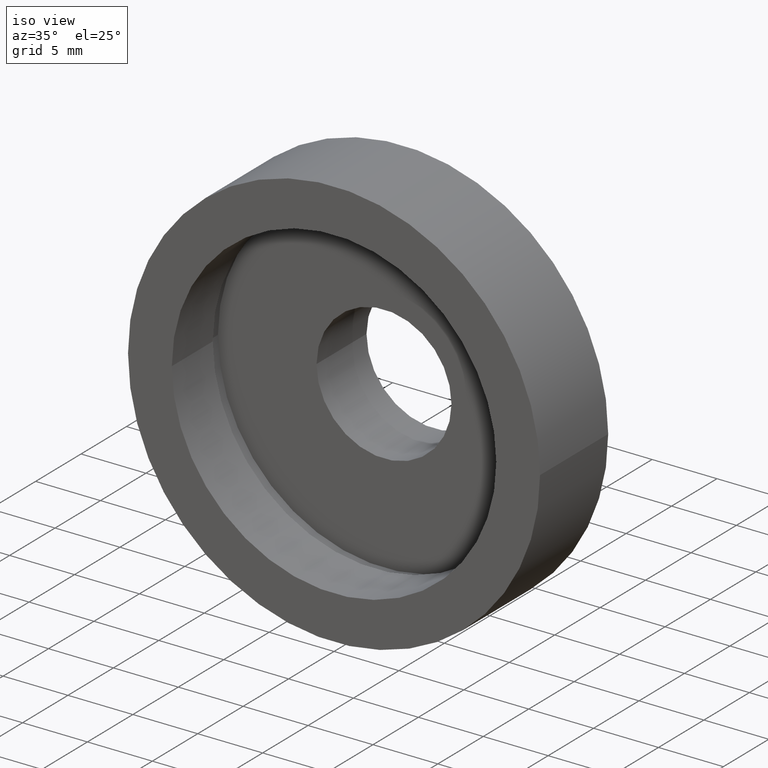
[diagram: clean part render]
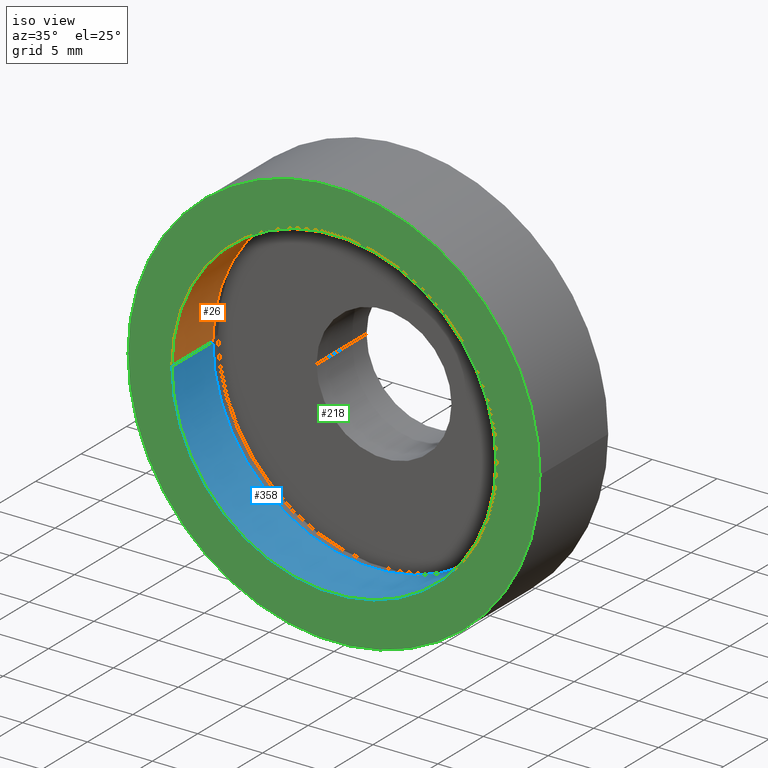
[diagram: same view with three faces highlighted in distinct colors, each labeled with its STEP entity id]
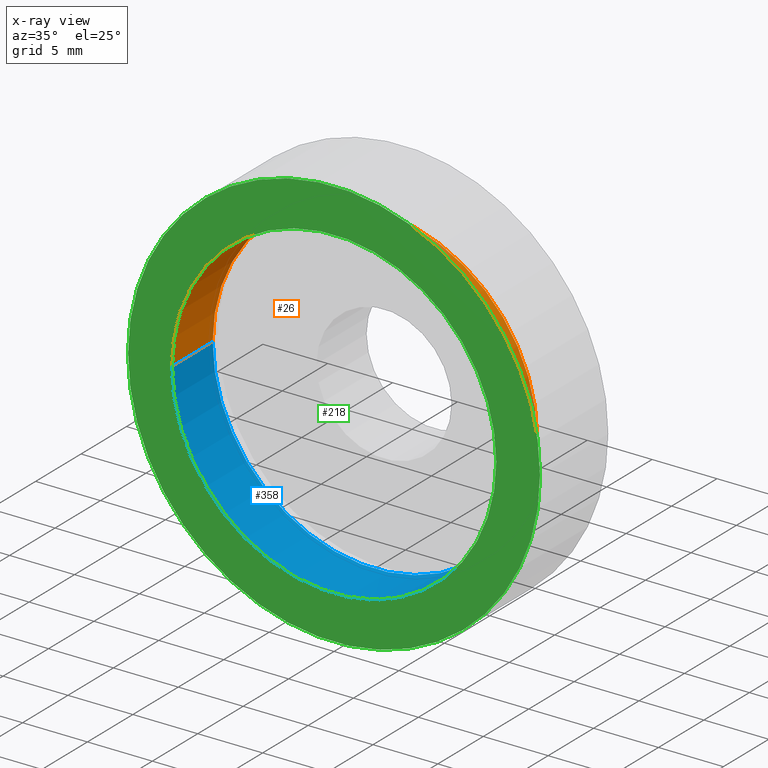
[diagram: x-ray of the same camera — body ghosted, the three highlighted faces saturated]
A machine part, iso view with three faces highlighted in distinct colors.
The next image is the same camera in x-ray (body ghosted, the three faces saturated) — at least one of them is partly hidden behind the body in this view.
Their STEP definitions:

[orange] entity #26 — the highlighted cylindrical surface (partial cylindrical patch) has radius 12.5 mm, axis along (-0, 1, -0).
#16 = VERTEX_POINT ( 'NONE', #192 ) ;
#26 = ADVANCED_FACE ( 'NONE', ( #76 ), #234, .F. ) ;
#66 = DIRECTION ( 'NONE',  ( -1.224646799147351000E-016, 1.000000000000000000, -0.0000000000000000000 ) ) ;
#70 = VERTEX_POINT ( 'NONE', #297 ) ;
#76 = FACE_OUTER_BOUND ( 'NONE', #491, .T. ) ;
#121 = AXIS2_PLACEMENT_3D ( 'NONE', #256, #209, #167 ) ;
#132 = CARTESIAN_POINT ( 'NONE',  ( 12.50000000000000200, 4.500000000000000900, 1.530808498934191500E-015 ) ) ;
#138 = ORIENTED_EDGE ( 'NONE', *, *, #405, .F. ) ;
#154 = ORIENTED_EDGE ( 'NONE', *, *, #363, .T. ) ;
#167 = DIRECTION ( 'NONE',  ( -1.000000000000000000, -1.387778780781445700E-016, 0.0000000000000000000 ) ) ;
#180 = DIRECTION ( 'NONE',  ( -1.000000000000000000, -1.224646799147351200E-016, 0.0000000000000000000 ) ) ;
#192 = CARTESIAN_POINT ( 'NONE',  ( -12.49999999999999800, 4.499999999999997300, 0.0000000000000000000 ) ) ;
#196 = CIRCLE ( 'NONE', #412, 12.50000000000000000 ) ;
#197 = DIRECTION ( 'NONE',  ( -1.000000000000000000, 0.0000000000000000000, 0.0000000000000000000 ) ) ;
#202 = EDGE_CURVE ( 'NONE', #16, #377, #279, .T. ) ;
#209 = DIRECTION ( 'NONE',  ( -1.224646799147351000E-016, 1.000000000000000000, -0.0000000000000000000 ) ) ;
#234 = CYLINDRICAL_SURFACE ( 'NONE', #380, 12.50000000000000000 ) ;
#256 = CARTESIAN_POINT ( 'NONE',  ( 1.516849758822328100E-015, 4.499999999999999100, 0.0000000000000000000 ) ) ;
#279 = CIRCLE ( 'NONE', #121, 12.50000000000000000 ) ;
#297 = CARTESIAN_POINT ( 'NONE',  ( 12.50000000000000200, 1.530808498934189000E-015, 1.530808498934191500E-015 ) ) ;
#323 = LINE ( 'NONE', #360, #554 ) ;
#327 = ORIENTED_EDGE ( 'NONE', *, *, #432, .F. ) ;
#334 = VECTOR ( 'NONE', #509, 1000.000000000000000 ) ;
#360 = CARTESIAN_POINT ( 'NONE',  ( -12.50000000000000000, 16.88601823708207700, 0.0000000000000000000 ) ) ;
#363 = EDGE_CURVE ( 'NONE', #493, #16, #323, .T. ) ;
#367 = ORIENTED_EDGE ( 'NONE', *, *, #202, .T. ) ;
#377 = VERTEX_POINT ( 'NONE', #132 ) ;
#380 = AXIS2_PLACEMENT_3D ( 'NONE', #437, #66, #197 ) ;
#403 = CARTESIAN_POINT ( 'NONE',  ( 2.067940818438636100E-015, 0.0000000000000000000, 0.0000000000000000000 ) ) ;
#405 = EDGE_CURVE ( 'NONE', #493, #70, #196, .T. ) ;
#412 = AXIS2_PLACEMENT_3D ( 'NONE', #403, #511, #180 ) ;
#432 = EDGE_CURVE ( 'NONE', #70, #377, #464, .T. ) ;
#437 = CARTESIAN_POINT ( 'NONE',  ( 0.0000000000000000000, 16.88601823708207700, 0.0000000000000000000 ) ) ;
#464 = LINE ( 'NONE', #612, #334 ) ;
#469 = CARTESIAN_POINT ( 'NONE',  ( -12.49999999999999800, -1.530808498934189000E-015, 0.0000000000000000000 ) ) ;
#491 = EDGE_LOOP ( 'NONE', ( #327, #138, #154, #367 ) ) ;
#493 = VERTEX_POINT ( 'NONE', #469 ) ;
#509 = DIRECTION ( 'NONE',  ( -1.224646799147351000E-016, 1.000000000000000000, -0.0000000000000000000 ) ) ;
#511 = DIRECTION ( 'NONE',  ( -1.224646799147351000E-016, 1.000000000000000000, -0.0000000000000000000 ) ) ;
#554 = VECTOR ( 'NONE', #608, 1000.000000000000000 ) ;
#608 = DIRECTION ( 'NONE',  ( -1.224646799147351000E-016, 1.000000000000000000, -0.0000000000000000000 ) ) ;
#612 = CARTESIAN_POINT ( 'NONE',  ( 12.50000000000000000, 16.88601823708207700, 1.530808498934191500E-015 ) ) ;

[blue] entity #358 — the highlighted cylindrical surface (partial cylindrical patch) has radius 12.5 mm, axis along (-0, 1, -0).
#4 = FACE_OUTER_BOUND ( 'NONE', #510, .T. ) ;
#16 = VERTEX_POINT ( 'NONE', #192 ) ;
#33 = EDGE_CURVE ( 'NONE', #70, #493, #331, .T. ) ;
#38 = CARTESIAN_POINT ( 'NONE',  ( 1.516849758822328100E-015, 4.499999999999999100, 0.0000000000000000000 ) ) ;
#70 = VERTEX_POINT ( 'NONE', #297 ) ;
#96 = AXIS2_PLACEMENT_3D ( 'NONE', #38, #375, #474 ) ;
#106 = DIRECTION ( 'NONE',  ( -1.000000000000000000, -1.224646799147351200E-016, 0.0000000000000000000 ) ) ;
#132 = CARTESIAN_POINT ( 'NONE',  ( 12.50000000000000200, 4.500000000000000900, 1.530808498934191500E-015 ) ) ;
#136 = CARTESIAN_POINT ( 'NONE',  ( 0.0000000000000000000, 16.88601823708207700, 0.0000000000000000000 ) ) ;
#192 = CARTESIAN_POINT ( 'NONE',  ( -12.49999999999999800, 4.499999999999997300, 0.0000000000000000000 ) ) ;
#224 = DIRECTION ( 'NONE',  ( -1.000000000000000000, 0.0000000000000000000, 0.0000000000000000000 ) ) ;
#242 = ORIENTED_EDGE ( 'NONE', *, *, #363, .F. ) ;
#249 = DIRECTION ( 'NONE',  ( -1.224646799147351000E-016, 1.000000000000000000, -0.0000000000000000000 ) ) ;
#291 = CYLINDRICAL_SURFACE ( 'NONE', #592, 12.50000000000000000 ) ;
#293 = CARTESIAN_POINT ( 'NONE',  ( 2.067940818438636100E-015, 0.0000000000000000000, 0.0000000000000000000 ) ) ;
#296 = ORIENTED_EDGE ( 'NONE', *, *, #33, .F. ) ;
#297 = CARTESIAN_POINT ( 'NONE',  ( 12.50000000000000200, 1.530808498934189000E-015, 1.530808498934191500E-015 ) ) ;
#323 = LINE ( 'NONE', #360, #554 ) ;
#331 = CIRCLE ( 'NONE', #429, 12.50000000000000000 ) ;
#334 = VECTOR ( 'NONE', #509, 1000.000000000000000 ) ;
#358 = ADVANCED_FACE ( 'NONE', ( #4 ), #291, .F. ) ;
#359 = CIRCLE ( 'NONE', #96, 12.50000000000000000 ) ;
#360 = CARTESIAN_POINT ( 'NONE',  ( -12.50000000000000000, 16.88601823708207700, 0.0000000000000000000 ) ) ;
#363 = EDGE_CURVE ( 'NONE', #493, #16, #323, .T. ) ;
#375 = DIRECTION ( 'NONE',  ( -1.224646799147351000E-016, 1.000000000000000000, -0.0000000000000000000 ) ) ;
#377 = VERTEX_POINT ( 'NONE', #132 ) ;
#427 = ORIENTED_EDGE ( 'NONE', *, *, #533, .T. ) ;
#429 = AXIS2_PLACEMENT_3D ( 'NONE', #293, #249, #106 ) ;
#432 = EDGE_CURVE ( 'NONE', #70, #377, #464, .T. ) ;
#464 = LINE ( 'NONE', #612, #334 ) ;
#469 = CARTESIAN_POINT ( 'NONE',  ( -12.49999999999999800, -1.530808498934189000E-015, 0.0000000000000000000 ) ) ;
#474 = DIRECTION ( 'NONE',  ( -1.000000000000000000, -1.387778780781445700E-016, 0.0000000000000000000 ) ) ;
#493 = VERTEX_POINT ( 'NONE', #469 ) ;
#509 = DIRECTION ( 'NONE',  ( -1.224646799147351000E-016, 1.000000000000000000, -0.0000000000000000000 ) ) ;
#510 = EDGE_LOOP ( 'NONE', ( #296, #621, #427, #242 ) ) ;
#533 = EDGE_CURVE ( 'NONE', #377, #16, #359, .T. ) ;
#554 = VECTOR ( 'NONE', #608, 1000.000000000000000 ) ;
#592 = AXIS2_PLACEMENT_3D ( 'NONE', #136, #605, #224 ) ;
#605 = DIRECTION ( 'NONE',  ( -1.224646799147351000E-016, 1.000000000000000000, -0.0000000000000000000 ) ) ;
#608 = DIRECTION ( 'NONE',  ( -1.224646799147351000E-016, 1.000000000000000000, -0.0000000000000000000 ) ) ;
#612 = CARTESIAN_POINT ( 'NONE',  ( 12.50000000000000000, 16.88601823708207700, 1.530808498934191500E-015 ) ) ;
#621 = ORIENTED_EDGE ( 'NONE', *, *, #432, .T. ) ;

[green] entity #218 — the highlighted planar face has unit normal (-0, 1, 0).
#33 = EDGE_CURVE ( 'NONE', #70, #493, #331, .T. ) ;
#56 = CARTESIAN_POINT ( 'NONE',  ( 2.067940818438636500E-015, -3.469446951953614200E-015, 0.0000000000000000000 ) ) ;
#61 = DIRECTION ( 'NONE',  ( -1.224646799147351000E-016, 1.000000000000000000, -0.0000000000000000000 ) ) ;
#68 = DIRECTION ( 'NONE',  ( -1.000000000000000000, -1.224646799147350700E-016, 0.0000000000000000000 ) ) ;
#69 = EDGE_CURVE ( 'NONE', #200, #99, #268, .T. ) ;
#70 = VERTEX_POINT ( 'NONE', #297 ) ;
#99 = VERTEX_POINT ( 'NONE', #431 ) ;
#106 = DIRECTION ( 'NONE',  ( -1.000000000000000000, -1.224646799147351200E-016, 0.0000000000000000000 ) ) ;
#114 = ORIENTED_EDGE ( 'NONE', *, *, #69, .F. ) ;
#119 = DIRECTION ( 'NONE',  ( -1.224646799147351000E-016, 1.000000000000000000, -0.0000000000000000000 ) ) ;
#120 = DIRECTION ( 'NONE',  ( -1.000000000000000000, -1.224646799147351000E-016, 0.0000000000000000000 ) ) ;
#142 = EDGE_CURVE ( 'NONE', #99, #200, #240, .T. ) ;
#180 = DIRECTION ( 'NONE',  ( -1.000000000000000000, -1.224646799147351200E-016, 0.0000000000000000000 ) ) ;
#196 = CIRCLE ( 'NONE', #412, 12.50000000000000000 ) ;
#200 = VERTEX_POINT ( 'NONE', #497 ) ;
#218 = ADVANCED_FACE ( 'NONE', ( #619, #262 ), #352, .F. ) ;
#240 = CIRCLE ( 'NONE', #371, 15.87499999999999600 ) ;
#249 = DIRECTION ( 'NONE',  ( -1.224646799147351000E-016, 1.000000000000000000, -0.0000000000000000000 ) ) ;
#262 = FACE_BOUND ( 'NONE', #269, .T. ) ;
#268 = CIRCLE ( 'NONE', #443, 15.87499999999999600 ) ;
#269 = EDGE_LOOP ( 'NONE', ( #333, #523 ) ) ;
#293 = CARTESIAN_POINT ( 'NONE',  ( 2.067940818438636100E-015, 0.0000000000000000000, 0.0000000000000000000 ) ) ;
#297 = CARTESIAN_POINT ( 'NONE',  ( 12.50000000000000200, 1.530808498934189000E-015, 1.530808498934191500E-015 ) ) ;
#302 = CARTESIAN_POINT ( 'NONE',  ( 2.067940818438636500E-015, -3.469446951953614200E-015, 0.0000000000000000000 ) ) ;
#317 = AXIS2_PLACEMENT_3D ( 'NONE', #498, #496, #120 ) ;
#331 = CIRCLE ( 'NONE', #429, 12.50000000000000000 ) ;
#333 = ORIENTED_EDGE ( 'NONE', *, *, #405, .T. ) ;
#352 = PLANE ( 'NONE',  #317 ) ;
#371 = AXIS2_PLACEMENT_3D ( 'NONE', #302, #119, #68 ) ;
#383 = DIRECTION ( 'NONE',  ( -1.000000000000000000, -1.224646799147350700E-016, 0.0000000000000000000 ) ) ;
#403 = CARTESIAN_POINT ( 'NONE',  ( 2.067940818438636100E-015, 0.0000000000000000000, 0.0000000000000000000 ) ) ;
#405 = EDGE_CURVE ( 'NONE', #493, #70, #196, .T. ) ;
#412 = AXIS2_PLACEMENT_3D ( 'NONE', #403, #511, #180 ) ;
#429 = AXIS2_PLACEMENT_3D ( 'NONE', #293, #249, #106 ) ;
#431 = CARTESIAN_POINT ( 'NONE',  ( 15.87500000000000000, -1.525320158307194900E-015, 1.944126793646423200E-015 ) ) ;
#443 = AXIS2_PLACEMENT_3D ( 'NONE', #56, #61, #383 ) ;
#454 = ORIENTED_EDGE ( 'NONE', *, *, #142, .F. ) ;
#469 = CARTESIAN_POINT ( 'NONE',  ( -12.49999999999999800, -1.530808498934189000E-015, 0.0000000000000000000 ) ) ;
#485 = EDGE_LOOP ( 'NONE', ( #114, #454 ) ) ;
#493 = VERTEX_POINT ( 'NONE', #469 ) ;
#496 = DIRECTION ( 'NONE',  ( -1.224646799147351000E-016, 1.000000000000000000, 0.0000000000000000000 ) ) ;
#497 = CARTESIAN_POINT ( 'NONE',  ( -15.87499999999999300, -5.413573745600033100E-015, 0.0000000000000000000 ) ) ;
#498 = CARTESIAN_POINT ( 'NONE',  ( 15.87500000000000000, -5.055566104016494100E-031, 0.0000000000000000000 ) ) ;
#511 = DIRECTION ( 'NONE',  ( -1.224646799147351000E-016, 1.000000000000000000, -0.0000000000000000000 ) ) ;
#523 = ORIENTED_EDGE ( 'NONE', *, *, #33, .T. ) ;
#619 = FACE_OUTER_BOUND ( 'NONE', #485, .T. ) ;